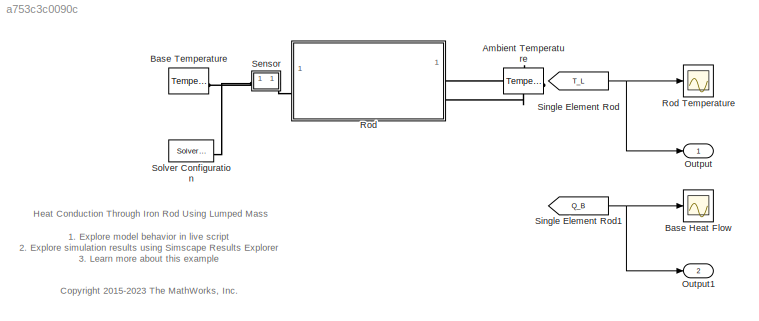
MODEL slx_a753c3c0090c
KIND model
CONFIG AbsTol = 1e-3
CONFIG EnableMultiTasking = on
CONFIG FixedStep = auto
CONFIG MaxStep = 100
CONFIG MinStep = auto
CONFIG PreLoadFcn = if ~exist('D', 'var')         D= 0.025;       end % [m]\nif ~exist('L', 'var')         L= 0.2;         end % [m]\nif ~exist('A', 'var')         A= pi*D^2/4;    end % [m^2]\nif ~exist('A_cyl', 'var')     A_cyl= pi*D*L;  end % [m^2]\nif ~exist('k', 'var')         k= 80.2;        end % [W/(K*m)]\nif ~exist('h', 'var')         h= 32.1;        end % [W/(K*m)]\nif ~exist('m', 'var')         m= 7800*A*L;    en...<+247ch>
CONFIG RelTol = 1e-3
CONFIG SampleTimeConstraint = Unconstrained
CONFIG SolverName = VariableStepAuto
CONFIG StartTime = 0.0
CONFIG StopTime = 2500
BLOCK [Reference] Ambient Temperature  REF=fl_lib/Thermal/Thermal Sources/Temperature Source
  SourceBlock = fl_lib/Thermal/Thermal Sources/Temperature Source
  SourceType = Temperature Source
BLOCK [Scope] Base Heat Flow
  Floating = off
  NumInputPorts = 1
  ScopeSpecificationString = Simulink.scopes.TimeScopeBlockCfg('CurrentConfiguration', extmgr.ConfigurationSet(extmgr.Configuration('Core','General UI',true,'FigureColor',[0.501960784313725 0.501960784313725 0.501960784313725]),extmgr.Configuration('Core','Source UI',true),extmgr.Configuration('Sources','WiredSimulink',true,'DataLoggingSaveFormat','StructureWithTime','DataLoggingLimitDataPoints',true,'DataLoggingDecimation','...<+2850ch>
  Tag = PublishScope
BLOCK [Reference] Base Temperature  REF=fl_lib/Thermal/Thermal Sources/Temperature Source
  SourceBlock = fl_lib/Thermal/Thermal Sources/Temperature Source
  SourceType = Temperature Source
BLOCK [Outport] Output
BLOCK [Outport] Output1
  Port = 2
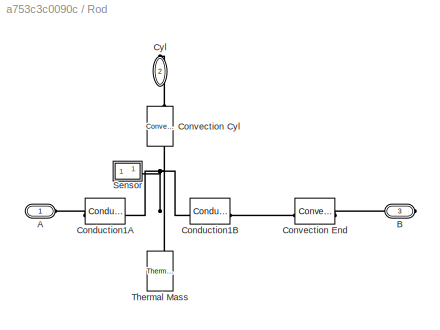
BLOCK [SubSystem] Rod
BLOCK [Scope] Rod Temperature
  Floating = off
  NumInputPorts = 1
  ScopeSpecificationString = Simulink.scopes.TimeScopeBlockCfg('CurrentConfiguration', extmgr.ConfigurationSet(extmgr.Configuration('Core','General UI',true,'FigureColor',[0.501960784313725 0.501960784313725 0.501960784313725]),extmgr.Configuration('Core','Source UI',true),extmgr.Configuration('Sources','WiredSimulink',true,'DataLoggingSaveFormat','StructureWithTime','DataLoggingLimitDataPoints',true,'DataLoggingDecimation','...<+2786ch>
  Tag = PublishScope
BLOCK [PMIOPort] Rod/A
  Side = Left
BLOCK [PMIOPort] Rod/B
  Port = 3
  Side = Right
BLOCK [Reference] Rod/Conduction1A  REF=fl_lib/Thermal/Thermal Elements/Conductive Heat
Transfer
  SourceBlock = fl_lib/Thermal/Thermal Elements/Conductive Heat\nTransfer
  SourceType = Conductive Heat\nTransfer
BLOCK [Reference] Rod/Conduction1B  REF=fl_lib/Thermal/Thermal Elements/Conductive Heat
Transfer
  SourceBlock = fl_lib/Thermal/Thermal Elements/Conductive Heat\nTransfer
  SourceType = Conductive Heat\nTransfer
BLOCK [Reference] Rod/Convection Cyl  REF=fl_lib/Thermal/Thermal Elements/Convective Heat
Transfer
  NameLocation = right
  SourceBlock = fl_lib/Thermal/Thermal Elements/Convective Heat\nTransfer
  SourceType = Convective Heat\nTransfer
BLOCK [Reference] Rod/Convection End  REF=fl_lib/Thermal/Thermal Elements/Convective Heat
Transfer
  SourceBlock = fl_lib/Thermal/Thermal Elements/Convective Heat\nTransfer
  SourceType = Convective Heat\nTransfer
BLOCK [PMIOPort] Rod/Cyl
  NameLocation = right
  Port = 2
  Side = Right
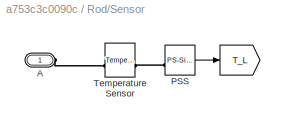
BLOCK [SubSystem] Rod/Sensor
BLOCK [Goto] Rod/Sensor/ 
  GotoTag = T_L
  Tag = CustomStyle
  TagVisibility = global
BLOCK [PMIOPort] Rod/Sensor/A
  Side = Left
BLOCK [Reference] Rod/Sensor/PSS  REF=nesl_utility/PS-Simulink
Converter
  SourceBlock = nesl_utility/PS-Simulink\nConverter
  SourceType = PS-Simulink\nConverter
BLOCK [Reference] Rod/Sensor/Temperature Sensor  REF=fl_lib/Thermal/Thermal Sensors/Temperature Sensor
  SourceBlock = fl_lib/Thermal/Thermal Sensors/Temperature Sensor
  SourceType = Temperature Sensor
BLOCK [Reference] Rod/Thermal Mass  REF=fl_lib/Thermal/Thermal Elements/Thermal Mass
  NameLocation = right
  SourceBlock = fl_lib/Thermal/Thermal Elements/Thermal Mass
  SourceType = Thermal Mass
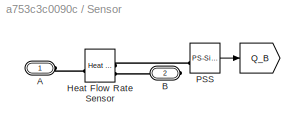
BLOCK [SubSystem] Sensor
BLOCK [Goto] Sensor/ 
  GotoTag = Q_B
  Tag = CustomStyle
  TagVisibility = global
BLOCK [PMIOPort] Sensor/A
  Side = Left
BLOCK [PMIOPort] Sensor/B
  Port = 2
  Side = Right
BLOCK [Reference] Sensor/Heat Flow Rate Sensor  REF=fl_lib/Thermal/Thermal Sensors/Heat Flow Rate
Sensor
  SourceBlock = fl_lib/Thermal/Thermal Sensors/Heat Flow Rate\nSensor
  SourceType = Heat Flow Rate\nSensor
BLOCK [Reference] Sensor/PSS  REF=nesl_utility/PS-Simulink
Converter
  SourceBlock = nesl_utility/PS-Simulink\nConverter
  SourceType = PS-Simulink\nConverter
BLOCK [From] Single Element Rod
  GotoTag = T_L
  Tag = CustomStyle
  TagVisibility = global
BLOCK [From] Single Element Rod1
  GotoTag = Q_B
  Tag = CustomStyle
  TagVisibility = global
BLOCK [Reference] Solver Configuration  REF=nesl_utility/Solver
Configuration
  NameLocation = left
  SourceBlock = nesl_utility/Solver\nConfiguration
  SourceType = Solver\nConfiguration
ANNOTATION (root): 1. Explore model behavior in live script 2. Explore simulation results using Simscape Results Explorer 3. Learn more about this example
ANNOTATION (root): <copyright redacted>
ANNOTATION (root): Heat Conduction Through Iron Rod Using Lumped Mass
LINE Rod/Sensor/PSS:1 -> Rod/Sensor/ :1
LINE Sensor/PSS:1 -> Sensor/ :1
NET Single Element Rod1:1 -> Base Heat Flow:1, Output1:1
NET Single Element Rod:1 -> Output:1, Rod Temperature:1
PNET net1: Ambient Temperature:LConn1 -- Rod:RConn1 -- Rod:RConn2
PNET net2: Base Temperature:LConn1 -- Sensor:LConn1 -- Solver Configuration:RConn1
PLINE Rod/A:RConn1 -- Rod/Conduction1A:LConn1
PLINE Rod/B:RConn1 -- Rod/Convection End:RConn1
PNET net3: Rod/Conduction1A:RConn1 -- Rod/Conduction1B:LConn1 -- Rod/Convection Cyl:LConn1 -- Rod/Sensor:LConn1 -- Rod/Thermal Mass:LConn1
PLINE Rod/Conduction1B:RConn1 -- Rod/Convection End:LConn1
PLINE Rod/Convection Cyl:RConn1 -- Rod/Cyl:RConn1
PLINE Rod/Sensor/A:RConn1 -- Rod/Sensor/Temperature Sensor:LConn1
PLINE Rod/Sensor/PSS:LConn1 -- Rod/Sensor/Temperature Sensor:RConn1
PLINE Rod:LConn1 -- Sensor:RConn1
PLINE Sensor/A:RConn1 -- Sensor/Heat Flow Rate Sensor:LConn1
PLINE Sensor/B:RConn1 -- Sensor/Heat Flow Rate Sensor:RConn2
PLINE Sensor/Heat Flow Rate Sensor:RConn1 -- Sensor/PSS:LConn1
note: NET lines group one-source signal fan-out (src -> all destinations, sorted); 1:1 wires keep LINE; PNET lines group multi-terminal physical nets as a canonical sorted terminal list (undirected conserving connections); 2-terminal nets keep the pairwise PLINE form
